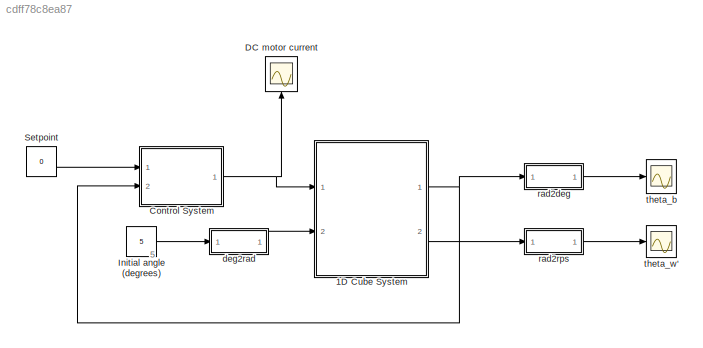
MODEL slx_cdff78c8ea87
KIND model
CONFIG AbsTol = auto
CONFIG EnableMultiTasking = off
CONFIG FixedStep = auto
CONFIG MaxStep = auto
CONFIG MinStep = auto
CONFIG RelTol = 1e-3
CONFIG SampleTimeConstraint = Unconstrained
CONFIG Solver = VariableStepAuto
CONFIG SolverName = VariableStepAuto
CONFIG StartTime = 0.0
CONFIG StopTime = 2
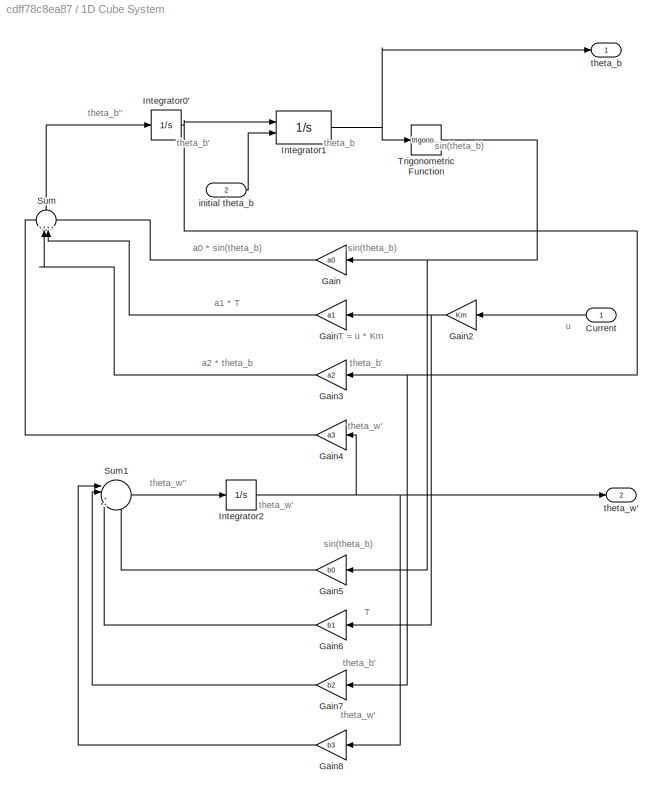
BLOCK [SubSystem] 1D Cube System
  Ports = [2, 2]
  RequestExecContextInheritance = off
  Variant = off
BLOCK [Inport] 1D Cube System/Current 
  IconDisplay = Port number
BLOCK [Gain] 1D Cube System/Gain
  Gain = a0
  OutDataTypeStr = Inherit: Inherit via internal rule
  ParamDataTypeStr = Inherit: Inherit via internal rule
  SaturateOnIntegerOverflow = off
BLOCK [Gain] 1D Cube System/Gain1
  Gain = a1
  OutDataTypeStr = Inherit: Inherit via internal rule
  ParamDataTypeStr = Inherit: Inherit via internal rule
  SaturateOnIntegerOverflow = off
BLOCK [Gain] 1D Cube System/Gain2
  Gain = Km
  OutDataTypeStr = Inherit: Inherit via internal rule
  ParamDataTypeStr = Inherit: Inherit via internal rule
  SaturateOnIntegerOverflow = off
BLOCK [Gain] 1D Cube System/Gain3
  Gain = a2
  OutDataTypeStr = Inherit: Inherit via internal rule
  ParamDataTypeStr = Inherit: Inherit via internal rule
  SaturateOnIntegerOverflow = off
BLOCK [Gain] 1D Cube System/Gain4
  Gain = a3
  OutDataTypeStr = Inherit: Inherit via internal rule
  ParamDataTypeStr = Inherit: Inherit via internal rule
  SaturateOnIntegerOverflow = off
BLOCK [Gain] 1D Cube System/Gain5
  Gain = b0
  OutDataTypeStr = Inherit: Inherit via internal rule
  ParamDataTypeStr = Inherit: Inherit via internal rule
  SaturateOnIntegerOverflow = off
BLOCK [Gain] 1D Cube System/Gain6
  Gain = b1
  OutDataTypeStr = Inherit: Inherit via internal rule
  ParamDataTypeStr = Inherit: Inherit via internal rule
  SaturateOnIntegerOverflow = off
BLOCK [Gain] 1D Cube System/Gain7
  Gain = b2
  OutDataTypeStr = Inherit: Inherit via internal rule
  ParamDataTypeStr = Inherit: Inherit via internal rule
  SaturateOnIntegerOverflow = off
BLOCK [Gain] 1D Cube System/Gain8
  Gain = b3
  OutDataTypeStr = Inherit: Inherit via internal rule
  ParamDataTypeStr = Inherit: Inherit via internal rule
  SaturateOnIntegerOverflow = off
BLOCK [Integrator] 1D Cube System/Integrator0'
  Ports = [1, 1]
BLOCK [Integrator] 1D Cube System/Integrator1
  InitialCondition = -0.1
  InitialConditionSource = external
  LimitOutput = on
  LowerSaturationLimit = -pi
  Ports = [2, 1]
  UpperSaturationLimit = pi
BLOCK [Integrator] 1D Cube System/Integrator2
  Ports = [1, 1]
BLOCK [Sum] 1D Cube System/Sum
  IconShape = round
  InputSameDT = off
  Inputs = ++++
  OutDataTypeStr = Inherit: Inherit via internal rule
  Ports = [4, 1]
  SaturateOnIntegerOverflow = off
BLOCK [Sum] 1D Cube System/Sum1
  IconShape = round
  InputSameDT = off
  Inputs = ||++++
  OutDataTypeStr = Inherit: Inherit via internal rule
  Ports = [4, 1]
  SaturateOnIntegerOverflow = off
BLOCK [Trigonometry] 1D Cube System/Trigonometric Function
  Ports = [1, 1]
BLOCK [Inport] 1D Cube System/initial theta_b 
  IconDisplay = Port number
  Port = 2
BLOCK [Outport] 1D Cube System/theta_b
  IconDisplay = Port number
BLOCK [Outport] 1D Cube System/theta_w'
  IconDisplay = Port number
  Port = 2
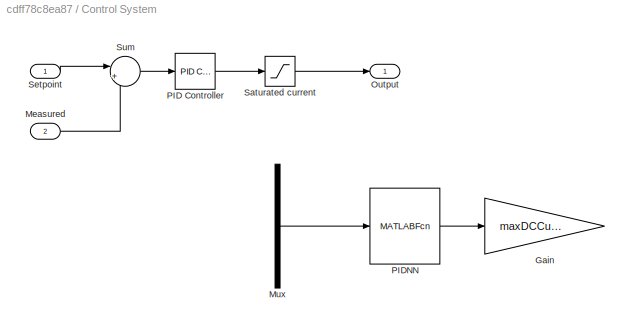
BLOCK [SubSystem] Control System
  Ports = [2, 1]
  RequestExecContextInheritance = off
  Variant = off
BLOCK [Gain] Control System/Gain
  Commented = on
  Gain = maxDCCurrent
  OutDataTypeStr = Inherit: Inherit via internal rule
  ParamDataTypeStr = Inherit: Inherit via internal rule
  SaturateOnIntegerOverflow = off
BLOCK [Inport] Control System/Measured
  IconDisplay = Port number
  Port = 2
BLOCK [Mux] Control System/Mux
  Commented = on
  DisplayOption = bar
  Inputs = 2
  Ports = [2, 1]
BLOCK [Outport] Control System/Output
  IconDisplay = Port number
BLOCK [Reference] Control System/PID Controller  REF=simulink/Continuous/PID Controller
  Ports = [1, 1]
  SourceBlock = simulink/Continuous/PID Controller
  SourceType = PID 1dof
BLOCK [MATLABFcn] Control System/PIDNN
  Commented = on
  MATLABFcn = pidnn_link(u(2), u(1))
  Ports = [1, 1]
BLOCK [Saturate] Control System/Saturated current
  InputPortMap = u0
  LowerLimit = -maxDCCurrent
  Ports = [1, 1]
  UpperLimit = maxDCCurrent
BLOCK [Inport] Control System/Setpoint
  IconDisplay = Port number
BLOCK [Sum] Control System/Sum
  IconShape = round
  InputSameDT = off
  Inputs = |+-
  OutDataTypeStr = Inherit: Inherit via internal rule
  Ports = [2, 1]
  SaturateOnIntegerOverflow = off
BLOCK [Scope] DC motor current
  NumInputPorts = 1
  Ports = [1]
  ScopeSpecificationString = Simulink.scopes.TimeScopeBlockCfg('CurrentConfiguration', extmgr.ConfigurationSet(extmgr.Configuration('Core','General UI',true),extmgr.Configuration('Core','Source UI',true),extmgr.Configuration('Sources','WiredSimulink',true,'DataLoggingVariableName','ScopeData1'),extmgr.Configuration('Visuals','Time Domain',true,'SerializedDisplays',{struct('MinYLimReal','-12.5','MaxYLimReal','12.5','YLabelReal...<+1401ch>
BLOCK [Constant] Initial angle (degrees)
  Value = 5
BLOCK [Constant] Setpoint
  Value = 0
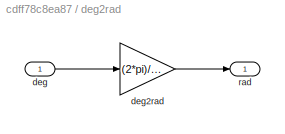
BLOCK [SubSystem] deg2rad
  Ports = [1, 1]
  RequestExecContextInheritance = off
  Variant = off
BLOCK [Inport] deg2rad/deg
  IconDisplay = Port number
BLOCK [Gain] deg2rad/deg2rad
  Gain = (2*pi)/180
  OutDataTypeStr = Inherit: Inherit via internal rule
  ParamDataTypeStr = Inherit: Inherit via internal rule
  SaturateOnIntegerOverflow = off
BLOCK [Outport] deg2rad/rad 
  IconDisplay = Port number
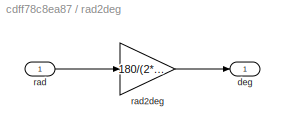
BLOCK [SubSystem] rad2deg
  Ports = [1, 1]
  RequestExecContextInheritance = off
  Variant = off
BLOCK [Outport] rad2deg/deg 
  IconDisplay = Port number
BLOCK [Inport] rad2deg/rad
  IconDisplay = Port number
BLOCK [Gain] rad2deg/rad2deg
  Gain = 180/(2*pi)
  OutDataTypeStr = Inherit: Inherit via internal rule
  ParamDataTypeStr = Inherit: Inherit via internal rule
  SaturateOnIntegerOverflow = off
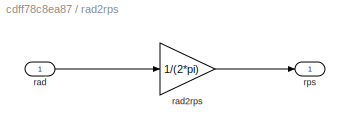
BLOCK [SubSystem] rad2rps
  Ports = [1, 1]
  RequestExecContextInheritance = off
  Variant = off
BLOCK [Inport] rad2rps/rad
  IconDisplay = Port number
BLOCK [Gain] rad2rps/rad2rps
  Gain = 1/(2*pi)
  OutDataTypeStr = Inherit: Inherit via internal rule
  ParamDataTypeStr = Inherit: Inherit via internal rule
  SaturateOnIntegerOverflow = off
BLOCK [Outport] rad2rps/rps
  IconDisplay = Port number
BLOCK [Scope] theta_b
  NumInputPorts = 1
  Ports = [1]
  ScopeSpecificationString = Simulink.scopes.TimeScopeBlockCfg('CurrentConfiguration', extmgr.ConfigurationSet(extmgr.Configuration('Core','General UI',true),extmgr.Configuration('Core','Source UI',true),extmgr.Configuration('Sources','WiredSimulink',true,'DataLogging',true,'DataLoggingVariableName','theta_bLog','DataLoggingSaveFormat','Array'),extmgr.Configuration('Visuals','Time Domain',true,'SerializedDisplays',{struct('Mi...<+1444ch>
BLOCK [Scope] theta_w'
  NumInputPorts = 1
  Ports = [1]
  ScopeSpecificationString = Simulink.scopes.TimeScopeBlockCfg('CurrentConfiguration', extmgr.ConfigurationSet(extmgr.Configuration('Core','General UI',true),extmgr.Configuration('Core','Source UI',true),extmgr.Configuration('Sources','WiredSimulink',true,'DataLoggingVariableName','ScopeData1'),extmgr.Configuration('Visuals','Time Domain',true,'SerializedDisplays',{struct('MinYLimReal','-1.6425','MaxYLimReal','0.2326','YLabel...<+1386ch>
ANNOTATION (root): 5
ANNOTATION 1D Cube System: theta_w'
ANNOTATION 1D Cube System: T
ANNOTATION 1D Cube System: T = u * Km
ANNOTATION 1D Cube System: a0 * sin(theta_b)
ANNOTATION 1D Cube System: a1 * T
ANNOTATION 1D Cube System: a2 * theta_b
ANNOTATION 1D Cube System: sin(theta_b)
ANNOTATION 1D Cube System: theta_b
ANNOTATION 1D Cube System: theta_b'
ANNOTATION 1D Cube System: theta_b''
ANNOTATION 1D Cube System: theta_w''
ANNOTATION 1D Cube System: u
LINE 1D Cube System/Current :1 -> 1D Cube System/Gain2:1
LINE 1D Cube System/Gain1:1 -> 1D Cube System/Sum:3
NET 1D Cube System/Gain2:1 -> 1D Cube System/Gain1:1, 1D Cube System/Gain6:1
LINE 1D Cube System/Gain3:1 -> 1D Cube System/Sum:2
LINE 1D Cube System/Gain4:1 -> 1D Cube System/Sum:1
LINE 1D Cube System/Gain5:1 -> 1D Cube System/Sum1:4
LINE 1D Cube System/Gain6:1 -> 1D Cube System/Sum1:3
LINE 1D Cube System/Gain7:1 -> 1D Cube System/Sum1:2
LINE 1D Cube System/Gain8:1 -> 1D Cube System/Sum1:1
LINE 1D Cube System/Gain:1 -> 1D Cube System/Sum:4
NET 1D Cube System/Integrator0':1 -> 1D Cube System/Gain3:1, 1D Cube System/Gain7:1, 1D Cube System/Integrator1:1
NET 1D Cube System/Integrator1:1 -> 1D Cube System/Trigonometric Function:1, 1D Cube System/theta_b:1
NET 1D Cube System/Integrator2:1 -> 1D Cube System/Gain4:1, 1D Cube System/Gain8:1, 1D Cube System/theta_w':1
LINE 1D Cube System/Sum1:1 -> 1D Cube System/Integrator2:1
LINE 1D Cube System/Sum:1 -> 1D Cube System/Integrator0':1
NET 1D Cube System/Trigonometric Function:1 -> 1D Cube System/Gain5:1, 1D Cube System/Gain:1
LINE 1D Cube System/initial theta_b :1 -> 1D Cube System/Integrator1:2
NET 1D Cube System:1 -> Control System:2, rad2deg:1
LINE 1D Cube System:2 -> rad2rps:1
LINE Control System/Measured:1 -> Control System/Sum:2
LINE Control System/Mux:1 -> Control System/PIDNN:1
LINE Control System/PID Controller:1 -> Control System/Saturated current:1
LINE Control System/PIDNN:1 -> Control System/Gain:1
LINE Control System/Saturated current:1 -> Control System/Output:1
LINE Control System/Setpoint:1 -> Control System/Sum:1
LINE Control System/Sum:1 -> Control System/PID Controller:1
NET Control System:1 -> 1D Cube System:1, DC motor current:1
LINE Initial angle (degrees):1 -> deg2rad:1
LINE Setpoint:1 -> Control System:1
LINE deg2rad/deg2rad:1 -> deg2rad/rad :1
LINE deg2rad/deg:1 -> deg2rad/deg2rad:1
LINE deg2rad:1 -> 1D Cube System:2
LINE rad2deg/rad2deg:1 -> rad2deg/deg :1
LINE rad2deg/rad:1 -> rad2deg/rad2deg:1
LINE rad2deg:1 -> theta_b:1
LINE rad2rps/rad2rps:1 -> rad2rps/rps:1
LINE rad2rps/rad:1 -> rad2rps/rad2rps:1
LINE rad2rps:1 -> theta_w':1
note: NET lines group one-source signal fan-out (src -> all destinations, sorted); 1:1 wires keep LINE
